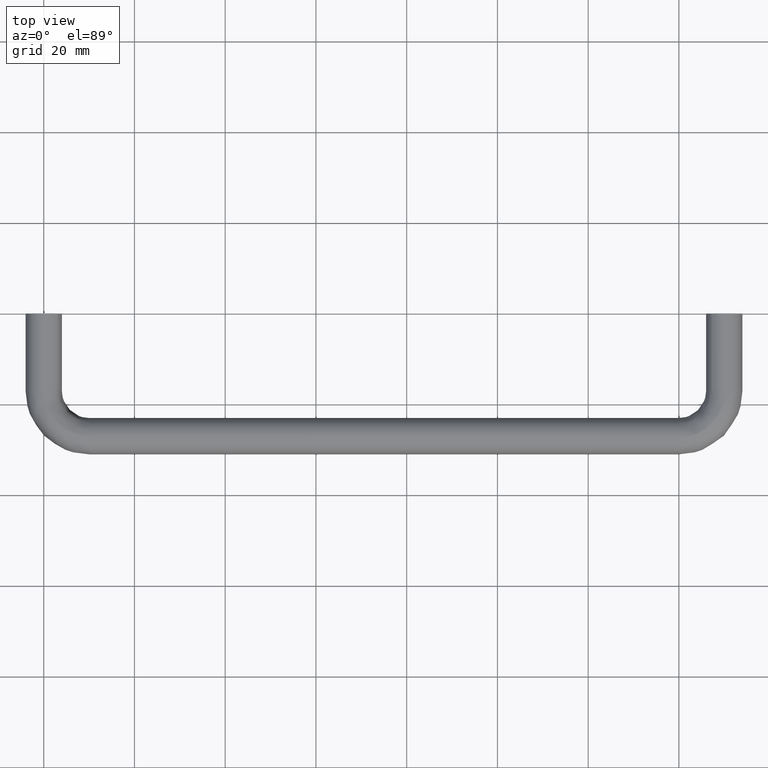
[diagram: clean part render]
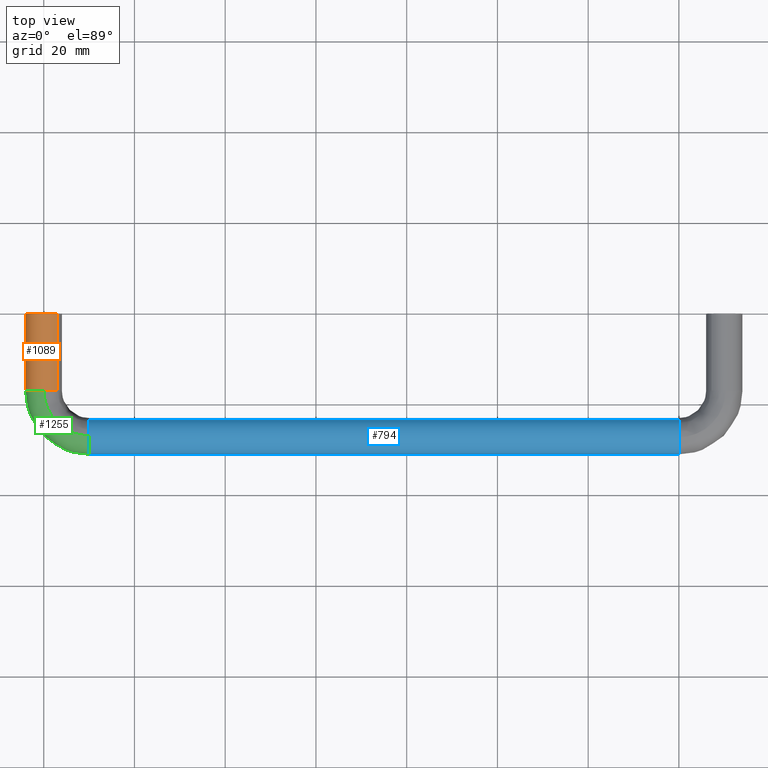
[diagram: same view with three faces highlighted in distinct colors, each labeled with its STEP entity id]
A machine part, top view with three faces highlighted in distinct colors.
Their STEP definitions:

[orange] entity #1089 — the highlighted face is a freeform B-spline surface patch.
#892=CARTESIAN_POINT('',(1.936875758742529,-17.0,-3.499787464287286));
#893=VERTEX_POINT('',#892);
#909=CARTESIAN_POINT('',(1.936878929040470,0.0,-3.499785709759819));
#910=VERTEX_POINT('',#909);
#911=CARTESIAN_POINT('',(1.936878929040470,0.0,-3.499785709759819));
#912=CARTESIAN_POINT('',(1.936875758742529,-17.0,-3.499787464287286));
#913=QUASI_UNIFORM_CURVE('',1,(#911,#912),.UNSPECIFIED.,.F.,.U.);
#914=EDGE_CURVE('',#910,#893,#913,.T.);
#931=CARTESIAN_POINT('',(2.949110740387567,5.551115E-017,2.702359310107826));
#932=VERTEX_POINT('',#931);
#946=CARTESIAN_POINT('',(2.949110422968060,-17.000000000488470,2.702359656111148));
#947=VERTEX_POINT('',#946);
#948=CARTESIAN_POINT('',(2.949110740387567,5.551115E-017,2.702359310107826));
#949=CARTESIAN_POINT('',(2.949110422968060,-17.000000000488470,2.702359656111148));
#950=QUASI_UNIFORM_CURVE('',1,(#948,#949),.UNSPECIFIED.,.F.,.U.);
#951=EDGE_CURVE('',#932,#947,#950,.T.);
#969=CARTESIAN_POINT('',(2.949109347240495,0.425000000067290,2.702360830462641));
#970=CARTESIAN_POINT('',(0.246748516777854,0.425000000067290,5.651470177703135));
#971=CARTESIAN_POINT('',(-2.702360830462641,0.425000000067290,2.949109347240495));
#972=CARTESIAN_POINT('',(-5.651470177703135,0.425000000067289,0.246748516777854));
#973=CARTESIAN_POINT('',(-2.949109347240495,0.425000000067290,-2.702360830462641));
#974=CARTESIAN_POINT('',(-0.820216833946429,0.425000000067290,-5.025639328083180));
#975=CARTESIAN_POINT('',(1.936878929017517,0.425000000067290,-3.499785709772521));
#976=CARTESIAN_POINT('',(2.949109347240497,-17.435625002760538,2.702360830462641));
#977=CARTESIAN_POINT('',(0.246748516777857,-17.435625002760535,5.651470177703135));
#978=CARTESIAN_POINT('',(-2.702360830462638,-17.435625002760538,2.949109347240495));
#979=CARTESIAN_POINT('',(-5.651470177703134,-17.435625002760535,0.246748516777854));
#980=CARTESIAN_POINT('',(-2.949109347240493,-17.435625002760538,-2.702360830462641));
#981=CARTESIAN_POINT('',(-0.820216833946427,-17.435625002760538,-5.025639328083180));
#982=CARTESIAN_POINT('',(1.936878929017520,-17.435625002760542,-3.499785709772521));
#990=(BOUNDED_SURFACE()B_SPLINE_SURFACE(2,1,((#969,#976),(#970,#977),(#971,#978),(#972,#979),(#973,#980),(#974,#981),(#975,#982)),.UNSPECIFIED.,.F.,.F.,.U.)B_SPLINE_SURFACE_WITH_KNOTS((3,2,2,3),(2,2),(0.0,6.627416997969519,13.254833995939039,18.821864274233430),(0.0,17.860625002827831),.UNSPECIFIED.)GEOMETRIC_REPRESENTATION_ITEM()RATIONAL_B_SPLINE_SURFACE(((1.0,1.0),(0.707106781186548,0.707106781186548),(1.0,1.0),(0.707106781186548,0.707106781186548),(1.0,1.0),(0.753969696196700,0.753969696196700),(0.921270302782944,0.921270302782944)))REPRESENTATION_ITEM('')SURFACE());
#991=CARTESIAN_POINT('',(-0.278933014776129,-17.000000002691571,-3.990262694769342));
#992=VERTEX_POINT('',#991);
#993=CARTESIAN_POINT('',(-0.278933014776130,-17.000000002691571,-3.990262694769342));
#994=CARTESIAN_POINT('',(-0.139636472004241,-17.000000000000004,-4.000000000000001));
#995=CARTESIAN_POINT('',(2.081831E-015,-17.0,-4.0));
#996=CARTESIAN_POINT('',(1.033029678756113,-16.999999999999996,-4.0));
#997=CARTESIAN_POINT('',(1.936875758742530,-16.999999999999993,-3.499787464287285));
#1005=(BOUNDED_CURVE()B_SPLINE_CURVE(2,(#993,#994,#995,#996,#997),.UNSPECIFIED.,.F.,.U.)B_SPLINE_CURVE_WITH_KNOTS((3,2,3),(0.237833685804635,0.250000000000000,0.332484149575816),.UNSPECIFIED.)CURVE()GEOMETRIC_REPRESENTATION_ITEM()RATIONAL_B_SPLINE_CURVE((0.972879874841997,0.985746276296895,1.0,0.903363807718596,0.870495248545805))REPRESENTATION_ITEM(''));
#1006=EDGE_CURVE('',#992,#893,#1005,.T.);
#1007=ORIENTED_EDGE('',*,*,#1006,.F.);
#1008=CARTESIAN_POINT('',(-3.999999999999998,-17.0,0.0));
#1009=VERTEX_POINT('',#1008);
#1010=CARTESIAN_POINT('',(-3.999999999999998,-17.0,0.0));
#1011=CARTESIAN_POINT('',(-3.999999999999998,-17.0,-3.730147373183934));
#1012=CARTESIAN_POINT('',(-0.278933014776130,-17.000000002691568,-3.990262694769342));
#1020=(BOUNDED_CURVE()B_SPLINE_CURVE(2,(#1010,#1011,#1012),.UNSPECIFIED.,.F.,.U.)B_SPLINE_CURVE_WITH_KNOTS((3,3),(0.0,0.237833685804635),.UNSPECIFIED.)CURVE()GEOMETRIC_REPRESENTATION_ITEM()RATIONAL_B_SPLINE_CURVE((1.0,0.721360504889652,0.972879874841998))REPRESENTATION_ITEM(''));
#1021=EDGE_CURVE('',#1009,#992,#1020,.T.);
#1022=ORIENTED_EDGE('',*,*,#1021,.F.);
#1023=CARTESIAN_POINT('',(0.050264162320149,-17.000000001836110,3.999684176780243));
#1024=VERTEX_POINT('',#1023);
#1025=CARTESIAN_POINT('',(0.050264162320149,-17.000000001836106,3.999684176780244));
#1026=CARTESIAN_POINT('',(0.025133074754626,-17.000000000000004,4.000000000000001));
#1027=CARTESIAN_POINT('',(2.081831E-015,-17.0,4.0));
#1028=CARTESIAN_POINT('',(-3.999999999999998,-17.000000000000004,4.000000000000000));
#1029=CARTESIAN_POINT('',(-3.999999999999998,-17.0,0.0));
#1037=(BOUNDED_CURVE()B_SPLINE_CURVE(2,(#1025,#1026,#1027,#1028,#1029),.UNSPECIFIED.,.F.,.U.)B_SPLINE_CURVE_WITH_KNOTS((3,2,3),(0.747784295676661,0.750000000000000,1.0),.UNSPECIFIED.)CURVE()GEOMETRIC_REPRESENTATION_ITEM()RATIONAL_B_SPLINE_CURVE((0.994854295079964,0.997404140915194,1.0,0.707106781186548,1.0))REPRESENTATION_ITEM(''));
#1038=EDGE_CURVE('',#1024,#1009,#1037,.T.);
#1039=ORIENTED_EDGE('',*,*,#1038,.F.);
#1040=CARTESIAN_POINT('',(2.949110422968061,-17.000000000488473,2.702359656111148));
#1041=CARTESIAN_POINT('',(1.780254268058497,-17.000000001031889,3.977943333137210));
#1042=CARTESIAN_POINT('',(0.050264162320149,-17.000000001836113,3.999684176780243));
#1050=(BOUNDED_CURVE()B_SPLINE_CURVE(2,(#1040,#1041,#1042),.UNSPECIFIED.,.F.,.U.)B_SPLINE_CURVE_WITH_KNOTS((3,3),(0.618415148961099,0.747784295676661),.UNSPECIFIED.)CURVE()GEOMETRIC_REPRESENTATION_ITEM()RATIONAL_B_SPLINE_CURVE((0.853959788259148,0.845975504491642,0.994854295079962))REPRESENTATION_ITEM(''));
#1051=EDGE_CURVE('',#947,#1024,#1050,.T.);
#1052=ORIENTED_EDGE('',*,*,#1051,.F.);
#1053=ORIENTED_EDGE('',*,*,#951,.F.);
#1054=CARTESIAN_POINT('',(-4.0,0.0,0.0));
#1055=VERTEX_POINT('',#1054);
#1056=CARTESIAN_POINT('',(2.949110740387567,5.551115E-017,2.702359310107826));
#1057=CARTESIAN_POINT('',(1.760043354250046,0.0,4.0));
#1058=CARTESIAN_POINT('',(0.0,0.0,4.0));
#1059=CARTESIAN_POINT('',(-4.000000000000000,0.0,4.000000000000000));
#1060=CARTESIAN_POINT('',(-4.0,0.0,0.0));
#1068=(BOUNDED_CURVE()B_SPLINE_CURVE(2,(#1056,#1057,#1058,#1059,#1060),.UNSPECIFIED.,.F.,.U.)B_SPLINE_CURVE_WITH_KNOTS((3,2,3),(0.618415131259578,0.750000000000000,1.0),.UNSPECIFIED.)CURVE()GEOMETRIC_REPRESENTATION_ITEM()RATIONAL_B_SPLINE_CURVE((0.853959790444123,0.845838736989889,1.0,0.707106781186548,1.0))REPRESENTATION_ITEM(''));
#1069=EDGE_CURVE('',#932,#1055,#1068,.T.);
#1070=ORIENTED_EDGE('',*,*,#1069,.T.);
#1071=CARTESIAN_POINT('',(-4.0,0.0,0.0));
#1072=CARTESIAN_POINT('',(-4.000000000000000,0.0,-4.000000000000000));
#1073=CARTESIAN_POINT('',(0.0,0.0,-4.0));
#1074=CARTESIAN_POINT('',(1.033031611314525,0.0,-4.0));
#1075=CARTESIAN_POINT('',(1.936878929040471,0.0,-3.499785709759819));
#1083=(BOUNDED_CURVE()B_SPLINE_CURVE(2,(#1071,#1072,#1073,#1074,#1075),.UNSPECIFIED.,.F.,.U.)B_SPLINE_CURVE_WITH_KNOTS((3,2,3),(0.0,0.250000000000000,0.332484288972660),.UNSPECIFIED.)CURVE()GEOMETRIC_REPRESENTATION_ITEM()RATIONAL_B_SPLINE_CURVE((1.0,0.707106781186548,1.0,0.903363644405035,0.870495137451348))REPRESENTATION_ITEM(''));
#1084=EDGE_CURVE('',#1055,#910,#1083,.T.);
#1085=ORIENTED_EDGE('',*,*,#1084,.T.);
#1086=ORIENTED_EDGE('',*,*,#914,.T.);
#1087=EDGE_LOOP('',(#1007,#1022,#1039,#1052,#1053,#1070,#1085,#1086));
#1088=FACE_OUTER_BOUND('',#1087,.T.);
#1089=ADVANCED_FACE('',(#1088),#990,.T.);

[blue] entity #794 — the highlighted face is a freeform B-spline surface patch.
#624=CARTESIAN_POINT('',(6.749999998630599,-23.417578029456681,1.779396758727104));
#625=CARTESIAN_POINT('',(6.749999998630598,-23.684880976469948,2.317552145081927));
#626=CARTESIAN_POINT('',(6.749999998630598,-24.098502515950852,2.753418302775015));
#627=CARTESIAN_POINT('',(6.749999998630598,-26.851920818725862,5.654915786824165));
#628=CARTESIAN_POINT('',(6.749999998630598,-29.753418302775010,2.901497484049150));
#629=CARTESIAN_POINT('',(6.749999998630598,-32.654915786824162,0.148079181274134));
#630=CARTESIAN_POINT('',(6.749999998630598,-29.901497484049148,-2.753418302775015));
#631=CARTESIAN_POINT('',(6.749999998630598,-27.148079181274138,-5.654915786824165));
#632=CARTESIAN_POINT('',(6.749999998630598,-24.246581697224990,-2.901497484049150));
#633=CARTESIAN_POINT('',(143.331250010542190,-23.417578029456667,1.779396758727104));
#634=CARTESIAN_POINT('',(143.331250010542190,-23.684880976469938,2.317552145081927));
#635=CARTESIAN_POINT('',(143.331250010542190,-24.098502515950830,2.753418302775015));
#636=CARTESIAN_POINT('',(143.331250010542190,-26.851920818725848,5.654915786824165));
#637=CARTESIAN_POINT('',(143.331250010542190,-29.753418302775000,2.901497484049150));
#638=CARTESIAN_POINT('',(143.331250010542190,-32.654915786824148,0.148079181274134));
#639=CARTESIAN_POINT('',(143.331250010542190,-29.901497484049131,-2.753418302775015));
#640=CARTESIAN_POINT('',(143.331250010542190,-27.148079181274127,-5.654915786824165));
#641=CARTESIAN_POINT('',(143.331250010542190,-24.246581697224968,-2.901497484049150));
#649=(BOUNDED_SURFACE()B_SPLINE_SURFACE(2,1,((#624,#633),(#625,#634),(#626,#635),(#627,#636),(#628,#637),(#629,#638),(#630,#639),(#631,#640),(#632,#641)),.UNSPECIFIED.,.F.,.F.,.U.)B_SPLINE_SURFACE_WITH_KNOTS((3,2,2,2,3),(2,2),(0.0,1.325483399593904,7.952900397563423,14.580317395532941,21.207734393502459),(0.0,136.581250011911610),.UNSPECIFIED.)GEOMETRIC_REPRESENTATION_ITEM()RATIONAL_B_SPLINE_SURFACE(((0.906274169979695,0.906274169979695),(0.941421356237309,0.941421356237309),(1.0,1.0),(0.707106781186548,0.707106781186548),(1.0,1.0),(0.707106781186548,0.707106781186548),(1.0,1.0),(0.707106781186548,0.707106781186548),(1.0,1.0)))REPRESENTATION_ITEM('')SURFACE());
#650=CARTESIAN_POINT('',(140.0,-23.417578029477610,1.779396758769257));
#651=VERTEX_POINT('',#650);
#652=CARTESIAN_POINT('',(140.000000010251710,-27.278933189776939,3.990262682536179));
#653=VERTEX_POINT('',#652);
#654=CARTESIAN_POINT('',(140.000000000000030,-23.417578029477614,1.779396758769256));
#655=CARTESIAN_POINT('',(139.999999999999940,-24.520556473275803,4.0));
#656=CARTESIAN_POINT('',(140.0,-27.0,4.0));
#657=CARTESIAN_POINT('',(139.999999999999970,-27.139636647645887,4.0));
#658=CARTESIAN_POINT('',(140.000000010251650,-27.278933189776939,3.990262682536178));
#666=(BOUNDED_CURVE()B_SPLINE_CURVE(2,(#654,#655,#656,#657,#658),.UNSPECIFIED.,.F.,.U.)B_SPLINE_CURVE_WITH_KNOTS((3,2,3),(0.575619190626044,0.750000000000000,0.762166329280624),.UNSPECIFIED.)CURVE()GEOMETRIC_REPRESENTATION_ITEM()RATIONAL_B_SPLINE_CURVE((0.876408099965181,0.795700173772668,1.0,0.985746258623414,0.972879842935376))REPRESENTATION_ITEM(''));
#667=EDGE_CURVE('',#651,#653,#666,.T.);
#668=ORIENTED_EDGE('',*,*,#667,.F.);
#669=CARTESIAN_POINT('',(9.999999999885187,-23.417578029538809,1.779396758739924));
#670=VERTEX_POINT('',#669);
#671=CARTESIAN_POINT('',(9.999999999885187,-23.417578029538809,1.779396758739924));
#672=CARTESIAN_POINT('',(140.0,-23.417578029477610,1.779396758769257));
#673=QUASI_UNIFORM_CURVE('',1,(#671,#672),.UNSPECIFIED.,.F.,.U.);
#674=EDGE_CURVE('',#670,#651,#673,.T.);
#675=ORIENTED_EDGE('',*,*,#674,.F.);
#676=CARTESIAN_POINT('',(9.999999998914040,-26.949735839024481,3.999684176797141));
#677=VERTEX_POINT('',#676);
#678=CARTESIAN_POINT('',(9.999999999885187,-23.417578029538809,1.779396758739924));
#679=CARTESIAN_POINT('',(9.999999999586169,-24.505140260979935,3.968962863876078));
#680=CARTESIAN_POINT('',(9.999999998914040,-26.949735839024488,3.999684176797141));
#688=(BOUNDED_CURVE()B_SPLINE_CURVE(2,(#678,#679,#680),.UNSPECIFIED.,.F.,.U.)B_SPLINE_CURVE_WITH_KNOTS((3,3),(0.575619190623424,0.747784295794908),.UNSPECIFIED.)CURVE()GEOMETRIC_REPRESENTATION_ITEM()RATIONAL_B_SPLINE_CURVE((0.876408099967606,0.796725658695953,0.994854295352122))REPRESENTATION_ITEM(''));
#689=EDGE_CURVE('',#670,#677,#688,.T.);
#690=ORIENTED_EDGE('',*,*,#689,.T.);
#691=CARTESIAN_POINT('',(10.0,-31.0,0.0));
#692=VERTEX_POINT('',#691);
#693=CARTESIAN_POINT('',(9.999999998914040,-26.949735839024481,3.999684176797141));
#694=CARTESIAN_POINT('',(10.0,-26.974866926590163,4.0));
#695=CARTESIAN_POINT('',(10.0,-27.0,4.0));
#696=CARTESIAN_POINT('',(10.000000000000002,-31.000000000000007,4.000000000000000));
#697=CARTESIAN_POINT('',(10.0,-31.0,0.0));
#705=(BOUNDED_CURVE()B_SPLINE_CURVE(2,(#693,#694,#695,#696,#697),.UNSPECIFIED.,.F.,.U.)B_SPLINE_CURVE_WITH_KNOTS((3,2,3),(0.747784295794909,0.750000000000000,1.0),.UNSPECIFIED.)CURVE()GEOMETRIC_REPRESENTATION_ITEM()RATIONAL_B_SPLINE_CURVE((0.994854295352123,0.997404141053729,1.0,0.707106781186548,1.0))REPRESENTATION_ITEM(''));
#706=EDGE_CURVE('',#677,#692,#705,.T.);
#707=ORIENTED_EDGE('',*,*,#706,.T.);
#708=CARTESIAN_POINT('',(9.999999999857518,-27.278933006948471,-3.990262695316522));
#709=VERTEX_POINT('',#708);
#710=CARTESIAN_POINT('',(10.0,-31.0,0.0));
#711=CARTESIAN_POINT('',(10.0,-31.000000000000011,-3.730147387854432));
#712=CARTESIAN_POINT('',(9.999999999857518,-27.278933006948474,-3.990262695316523));
#720=(BOUNDED_CURVE()B_SPLINE_CURVE(2,(#710,#711,#712),.UNSPECIFIED.,.F.,.U.)B_SPLINE_CURVE_WITH_KNOTS((3,3),(0.0,0.237833686479388),.UNSPECIFIED.)CURVE()GEOMETRIC_REPRESENTATION_ITEM()RATIONAL_B_SPLINE_CURVE((1.0,0.721360504099130,0.972879876269158))REPRESENTATION_ITEM(''));
#721=EDGE_CURVE('',#692,#709,#720,.T.);
#722=ORIENTED_EDGE('',*,*,#721,.T.);
#723=CARTESIAN_POINT('',(10.0,-24.246582505429380,-2.901498251006061));
#724=VERTEX_POINT('',#723);
#725=CARTESIAN_POINT('',(9.999999999857518,-27.278933006948471,-3.990262695316522));
#726=CARTESIAN_POINT('',(10.000000000000002,-27.139636464147920,-4.0));
#727=CARTESIAN_POINT('',(10.0,-27.0,-4.0));
#728=CARTESIAN_POINT('',(9.999999999999998,-25.404162461871636,-4.0));
#729=CARTESIAN_POINT('',(10.0,-24.246582505429387,-2.901498251006061));
#737=(BOUNDED_CURVE()B_SPLINE_CURVE(2,(#725,#726,#727,#728,#729),.UNSPECIFIED.,.F.,.U.)B_SPLINE_CURVE_WITH_KNOTS((3,2,3),(0.237833686479388,0.250000000000000,0.371049484622336),.UNSPECIFIED.)CURVE()GEOMETRIC_REPRESENTATION_ITEM()RATIONAL_B_SPLINE_CURVE((0.972879876269158,0.985746277087417,1.0,0.858181707253018,0.853699664482370))REPRESENTATION_ITEM(''));
#738=EDGE_CURVE('',#709,#724,#737,.T.);
#739=ORIENTED_EDGE('',*,*,#738,.T.);
#740=CARTESIAN_POINT('',(140.000000000115700,-24.246582932973361,-2.901498656702296));
#741=VERTEX_POINT('',#740);
#742=CARTESIAN_POINT('',(10.0,-24.246582505429380,-2.901498251006061));
#743=CARTESIAN_POINT('',(140.000000000115700,-24.246582932973361,-2.901498656702296));
#744=QUASI_UNIFORM_CURVE('',1,(#742,#743),.UNSPECIFIED.,.F.,.U.);
#745=EDGE_CURVE('',#724,#741,#744,.T.);
#746=ORIENTED_EDGE('',*,*,#745,.T.);
#747=CARTESIAN_POINT('',(140.000000000366700,-26.949735840281949,-3.999684176812943));
#748=VERTEX_POINT('',#747);
#749=CARTESIAN_POINT('',(140.000000000366700,-26.949735840281949,-3.999684176812943));
#750=CARTESIAN_POINT('',(140.000000000221290,-25.383082967628233,-3.979995999691451));
#751=CARTESIAN_POINT('',(140.000000000115760,-24.246582932973364,-2.901498656702296));
#759=(BOUNDED_CURVE()B_SPLINE_CURVE(2,(#749,#750,#751),.UNSPECIFIED.,.F.,.U.)B_SPLINE_CURVE_WITH_KNOTS((3,3),(0.252215704094509,0.371049462387032),.UNSPECIFIED.)CURVE()GEOMETRIC_REPRESENTATION_ITEM()RATIONAL_B_SPLINE_CURVE((0.994854295606640,0.858099693000149,0.853699666128967))REPRESENTATION_ITEM(''));
#760=EDGE_CURVE('',#748,#741,#759,.T.);
#761=ORIENTED_EDGE('',*,*,#760,.F.);
#762=CARTESIAN_POINT('',(140.0,-31.0,0.0));
#763=VERTEX_POINT('',#762);
#764=CARTESIAN_POINT('',(140.0,-31.0,0.0));
#765=CARTESIAN_POINT('',(140.0,-31.000000000000007,-4.000000000000000));
#766=CARTESIAN_POINT('',(140.0,-27.0,-4.0));
#767=CARTESIAN_POINT('',(140.000000000000030,-26.974866927847774,-4.0));
#768=CARTESIAN_POINT('',(140.000000000366700,-26.949735840281953,-3.999684176812943));
#776=(BOUNDED_CURVE()B_SPLINE_CURVE(2,(#764,#765,#766,#767,#768),.UNSPECIFIED.,.F.,.U.)B_SPLINE_CURVE_WITH_KNOTS((3,2,3),(0.0,0.250000000000000,0.252215704094509),.UNSPECIFIED.)CURVE()GEOMETRIC_REPRESENTATION_ITEM()RATIONAL_B_SPLINE_CURVE((1.0,0.707106781186548,1.0,0.997404141183284,0.994854295606640))REPRESENTATION_ITEM(''));
#777=EDGE_CURVE('',#763,#748,#776,.T.);
#778=ORIENTED_EDGE('',*,*,#777,.F.);
#779=CARTESIAN_POINT('',(140.000000010251680,-27.278933189776936,3.990262682536179));
#780=CARTESIAN_POINT('',(140.000000000000060,-31.000000000000004,3.730147045199646));
#781=CARTESIAN_POINT('',(140.0,-31.0,0.0));
#789=(BOUNDED_CURVE()B_SPLINE_CURVE(2,(#779,#780,#781),.UNSPECIFIED.,.F.,.U.)B_SPLINE_CURVE_WITH_KNOTS((3,3),(0.762166329280624,1.0),.UNSPECIFIED.)CURVE()GEOMETRIC_REPRESENTATION_ITEM()RATIONAL_B_SPLINE_CURVE((0.972879842935376,0.721360522563133,1.0))REPRESENTATION_ITEM(''));
#790=EDGE_CURVE('',#653,#763,#789,.T.);
#791=ORIENTED_EDGE('',*,*,#790,.F.);
#792=EDGE_LOOP('',(#668,#675,#690,#707,#722,#739,#746,#761,#778,#791));
#793=FACE_OUTER_BOUND('',#792,.T.);
#794=ADVANCED_FACE('',(#793),#649,.T.);

[green] entity #1255 — the highlighted face is a freeform B-spline surface patch.
#676=CARTESIAN_POINT('',(9.999999998914040,-26.949735839024481,3.999684176797141));
#677=VERTEX_POINT('',#676);
#691=CARTESIAN_POINT('',(10.0,-31.0,0.0));
#692=VERTEX_POINT('',#691);
#693=CARTESIAN_POINT('',(9.999999998914040,-26.949735839024481,3.999684176797141));
#694=CARTESIAN_POINT('',(10.0,-26.974866926590163,4.0));
#695=CARTESIAN_POINT('',(10.0,-27.0,4.0));
#696=CARTESIAN_POINT('',(10.000000000000002,-31.000000000000007,4.000000000000000));
#697=CARTESIAN_POINT('',(10.0,-31.0,0.0));
#705=(BOUNDED_CURVE()B_SPLINE_CURVE(2,(#693,#694,#695,#696,#697),.UNSPECIFIED.,.F.,.U.)B_SPLINE_CURVE_WITH_KNOTS((3,2,3),(0.747784295794909,0.750000000000000,1.0),.UNSPECIFIED.)CURVE()GEOMETRIC_REPRESENTATION_ITEM()RATIONAL_B_SPLINE_CURVE((0.994854295352123,0.997404141053729,1.0,0.707106781186548,1.0))REPRESENTATION_ITEM(''));
#706=EDGE_CURVE('',#677,#692,#705,.T.);
#708=CARTESIAN_POINT('',(9.999999999857518,-27.278933006948471,-3.990262695316522));
#709=VERTEX_POINT('',#708);
#710=CARTESIAN_POINT('',(10.0,-31.0,0.0));
#711=CARTESIAN_POINT('',(10.0,-31.000000000000011,-3.730147387854432));
#712=CARTESIAN_POINT('',(9.999999999857518,-27.278933006948474,-3.990262695316523));
#720=(BOUNDED_CURVE()B_SPLINE_CURVE(2,(#710,#711,#712),.UNSPECIFIED.,.F.,.U.)B_SPLINE_CURVE_WITH_KNOTS((3,3),(0.0,0.237833686479388),.UNSPECIFIED.)CURVE()GEOMETRIC_REPRESENTATION_ITEM()RATIONAL_B_SPLINE_CURVE((1.0,0.721360504099130,0.972879876269158))REPRESENTATION_ITEM(''));
#721=EDGE_CURVE('',#692,#709,#720,.T.);
#991=CARTESIAN_POINT('',(-0.278933014776129,-17.000000002691571,-3.990262694769342));
#992=VERTEX_POINT('',#991);
#1008=CARTESIAN_POINT('',(-3.999999999999998,-17.0,0.0));
#1009=VERTEX_POINT('',#1008);
#1010=CARTESIAN_POINT('',(-3.999999999999998,-17.0,0.0));
#1011=CARTESIAN_POINT('',(-3.999999999999998,-17.0,-3.730147373183934));
#1012=CARTESIAN_POINT('',(-0.278933014776130,-17.000000002691568,-3.990262694769342));
#1020=(BOUNDED_CURVE()B_SPLINE_CURVE(2,(#1010,#1011,#1012),.UNSPECIFIED.,.F.,.U.)B_SPLINE_CURVE_WITH_KNOTS((3,3),(0.0,0.237833685804635),.UNSPECIFIED.)CURVE()GEOMETRIC_REPRESENTATION_ITEM()RATIONAL_B_SPLINE_CURVE((1.0,0.721360504889652,0.972879874841998))REPRESENTATION_ITEM(''));
#1021=EDGE_CURVE('',#1009,#992,#1020,.T.);
#1023=CARTESIAN_POINT('',(0.050264162320149,-17.000000001836110,3.999684176780243));
#1024=VERTEX_POINT('',#1023);
#1025=CARTESIAN_POINT('',(0.050264162320149,-17.000000001836106,3.999684176780244));
#1026=CARTESIAN_POINT('',(0.025133074754626,-17.000000000000004,4.000000000000001));
#1027=CARTESIAN_POINT('',(2.081831E-015,-17.0,4.0));
#1028=CARTESIAN_POINT('',(-3.999999999999998,-17.000000000000004,4.000000000000000));
#1029=CARTESIAN_POINT('',(-3.999999999999998,-17.0,0.0));
#1037=(BOUNDED_CURVE()B_SPLINE_CURVE(2,(#1025,#1026,#1027,#1028,#1029),.UNSPECIFIED.,.F.,.U.)B_SPLINE_CURVE_WITH_KNOTS((3,2,3),(0.747784295676661,0.750000000000000,1.0),.UNSPECIFIED.)CURVE()GEOMETRIC_REPRESENTATION_ITEM()RATIONAL_B_SPLINE_CURVE((0.994854295079964,0.997404140915194,1.0,0.707106781186548,1.0))REPRESENTATION_ITEM(''));
#1038=EDGE_CURVE('',#1024,#1009,#1037,.T.);
#1194=CARTESIAN_POINT('',(-0.196834659788702,-16.293047997121359,-3.994290603419821));
#1195=CARTESIAN_POINT('',(-1.009730562951050,-28.017981353861458,-3.994290603419821));
#1196=CARTESIAN_POINT('',(10.714590540593354,-27.196302200932298,-3.994290603419820));
#1197=CARTESIAN_POINT('',(-0.225496889636992,-16.291060829389970,-3.992282205975329));
#1198=CARTESIAN_POINT('',(-1.040677757692520,-28.048951740708468,-3.992282205975329));
#1199=CARTESIAN_POINT('',(10.716599179450929,-27.224962934094744,-3.992282205975329));
#1200=CARTESIAN_POINT('',(-4.013512147630050,-16.028435704738925,-3.726851351358788));
#1201=CARTESIAN_POINT('',(-5.130675168684697,-32.142014232473429,-3.726851351358789));
#1202=CARTESIAN_POINT('',(10.982061939346378,-31.012780389304915,-3.726851351358789));
#1203=CARTESIAN_POINT('',(-3.966158686725386,-16.031718745520379,0.050264159533410));
#1204=CARTESIAN_POINT('',(-5.079546670167449,-32.090847417800461,0.050264159533410));
#1205=CARTESIAN_POINT('',(10.978743425674653,-30.965429401105794,0.050264159533410));
#1206=CARTESIAN_POINT('',(-3.916014896377526,-16.035195241335110,4.049948336348672));
#1207=CARTESIAN_POINT('',(-5.025405395982419,-32.036665569658567,4.049948336348672));
#1208=CARTESIAN_POINT('',(10.975229366709534,-30.915288229169061,4.049948336348674));
#1209=CARTESIAN_POINT('',(0.102319963292578,-16.313788547205178,3.999328572321735));
#1210=CARTESIAN_POINT('',(-0.686727208804841,-27.694735938102298,3.999328572321735));
#1211=CARTESIAN_POINT('',(10.693625891174090,-26.897163199123092,3.999328572321734));
#1212=CARTESIAN_POINT('',(0.130383854753217,-16.315734231815995,3.998975045895236));
#1213=CARTESIAN_POINT('',(-0.656426052236323,-27.664412073575054,3.998975045895236));
#1214=CARTESIAN_POINT('',(10.691659183657583,-26.869100773104233,3.998975045895237));
#1222=(BOUNDED_SURFACE()B_SPLINE_SURFACE(2,2,((#1194,#1197,#1200,#1203,#1206,#1209,#1212),(#1195,#1198,#1201,#1204,#1207,#1210,#1213),(#1196,#1199,#1202,#1205,#1208,#1211,#1214)),.UNSPECIFIED.,.F.,.F.,.U.)B_SPLINE_SURFACE_WITH_KNOTS((3,3),(3,1,2,1,3),(0.0,25.512457512980429),(0.0,0.066515791563473,6.428836109614211,13.056253107583730,13.122756324466820),.UNSPECIFIED.)GEOMETRIC_REPRESENTATION_ITEM()RATIONAL_B_SPLINE_SURFACE(((0.905744057554832,0.903251947136346,0.662386295974072,0.921487970695580,0.651590392860676,0.924196274271540,0.926904577847499),(0.591078802383255,0.589452478004663,0.432266152092013,0.601353110281207,0.425220862167464,0.603120519982454,0.604887929683700),(0.895737652983719,0.893273074697379,0.655068439230114,0.911307631818076,0.644391806205615,0.913986014820937,0.916664397823798)))REPRESENTATION_ITEM('')SURFACE());
#1223=ORIENTED_EDGE('',*,*,#721,.F.);
#1224=ORIENTED_EDGE('',*,*,#706,.F.);
#1225=CARTESIAN_POINT('',(0.050264162320149,-17.000000001836110,3.999684176780243));
#1226=CARTESIAN_POINT('',(0.050264163205631,-26.949735838294675,3.999684176815264));
#1227=CARTESIAN_POINT('',(9.999999998914040,-26.949735839024481,3.999684176797140));
#1235=(BOUNDED_CURVE()B_SPLINE_CURVE(2,(#1225,#1226,#1227),.UNSPECIFIED.,.F.,.U.)B_SPLINE_CURVE_WITH_KNOTS((3,3),(-1.747842683283714,-0.278273131171982),.UNSPECIFIED.)CURVE()GEOMETRIC_REPRESENTATION_ITEM()RATIONAL_B_SPLINE_CURVE((0.893710737825023,0.628668022997302,0.884455039376678))REPRESENTATION_ITEM(''));
#1236=EDGE_CURVE('',#1024,#677,#1235,.T.);
#1237=ORIENTED_EDGE('',*,*,#1236,.F.);
#1238=ORIENTED_EDGE('',*,*,#1038,.T.);
#1239=ORIENTED_EDGE('',*,*,#1021,.T.);
#1240=CARTESIAN_POINT('',(-0.278933014776130,-17.000000002691564,-3.990262694769342));
#1241=CARTESIAN_POINT('',(-0.278933000918627,-27.278933006016807,-3.990262695361730));
#1242=CARTESIAN_POINT('',(9.999999999857518,-27.278933006948471,-3.990262695316523));
#1250=(BOUNDED_CURVE()B_SPLINE_CURVE(2,(#1240,#1241,#1242),.UNSPECIFIED.,.F.,.U.)B_SPLINE_CURVE_WITH_KNOTS((3,3),(-1.747842683122194,-0.278273130974985),.UNSPECIFIED.)CURVE()GEOMETRIC_REPRESENTATION_ITEM()RATIONAL_B_SPLINE_CURVE((0.873607430399901,0.614526639247018,0.864559931600220))REPRESENTATION_ITEM(''));
#1251=EDGE_CURVE('',#992,#709,#1250,.T.);
#1252=ORIENTED_EDGE('',*,*,#1251,.T.);
#1253=EDGE_LOOP('',(#1223,#1224,#1237,#1238,#1239,#1252));
#1254=FACE_OUTER_BOUND('',#1253,.T.);
#1255=ADVANCED_FACE('',(#1254),#1222,.T.);